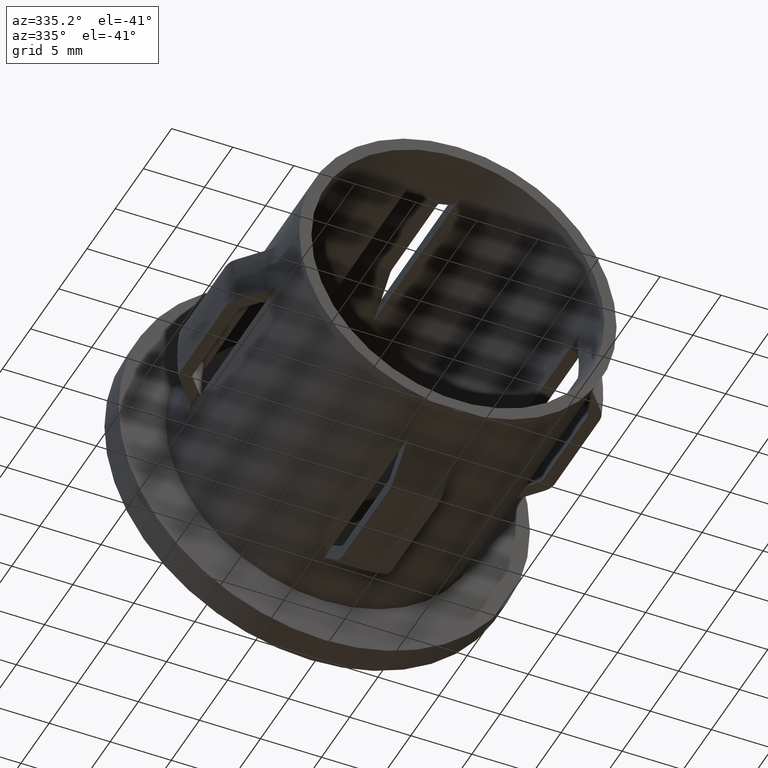
[diagram: clean part render]
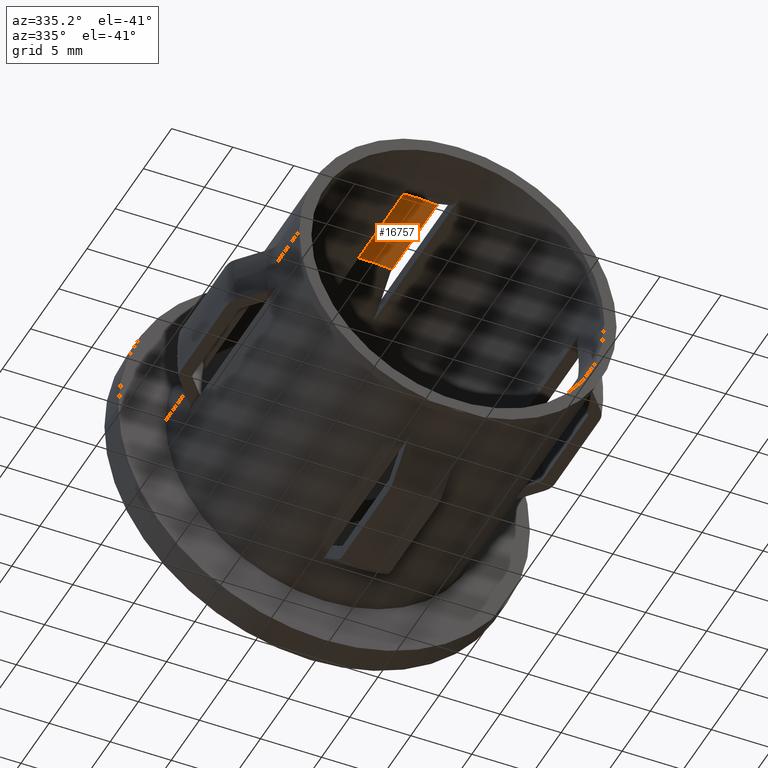
[diagram: same view with one face highlighted and labeled with its STEP entity id]
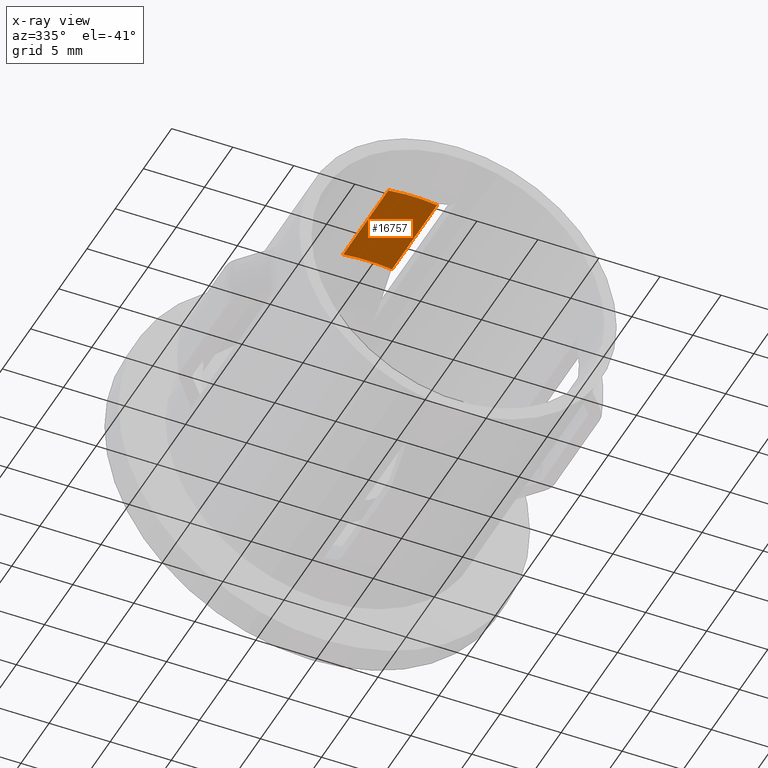
[diagram: x-ray of the same camera — body ghosted, the highlighted face saturated]
A machine part, auxiliary view. The second image highlights one B-rep face of the part: STEP entity #16757.
The next image is the same camera in x-ray: the body ghosted, the highlighted face saturated — about 0% of this face is hidden behind the body in this view.
In plain terms, the highlighted cylindrical surface (partial cylindrical patch) has radius 14.45 mm, axis along (0, 1, -0).
Its self-contained STEP definition (entity closure, byte-faithful):
#534 = CARTESIAN_POINT ( 'NONE',  ( 2.000000000000004900, 26.19999999999999900, 14.31092240213746800 ) ) ;
#744 = ORIENTED_EDGE ( 'NONE', *, *, #10645, .T. ) ;
#803 = CIRCLE ( 'NONE', #11280, 14.44999999999999800 ) ;
#1091 = VECTOR ( 'NONE', #13148, 1000.000000000000000 ) ;
#1108 = DIRECTION ( 'NONE',  ( -1.000000000000000000, 0.0000000000000000000, 0.0000000000000000000 ) ) ;
#2536 = VERTEX_POINT ( 'NONE', #14616 ) ;
#3036 = ORIENTED_EDGE ( 'NONE', *, *, #12866, .F. ) ;
#3044 = CARTESIAN_POINT ( 'NONE',  ( -1.999999999999995800, 16.00000000000000000, 14.31092240213746300 ) ) ;
#3489 = VERTEX_POINT ( 'NONE', #10727 ) ;
#3727 = CARTESIAN_POINT ( 'NONE',  ( 2.000000000000003600, 8.000000000000003600, 14.31092240213746800 ) ) ;
#3769 = CARTESIAN_POINT ( 'NONE',  ( 3.673940397442062800E-016, 26.19999999999999900, 0.0000000000000000000 ) ) ;
#4160 = EDGE_CURVE ( 'NONE', #11248, #3489, #803, .T. ) ;
#4924 = AXIS2_PLACEMENT_3D ( 'NONE', #3769, #9211, #5440 ) ;
#5440 = DIRECTION ( 'NONE',  ( -1.000000000000000000, 0.0000000000000000000, 0.0000000000000000000 ) ) ;
#5462 = CIRCLE ( 'NONE', #5555, 14.45000000000000300 ) ;
#5555 = AXIS2_PLACEMENT_3D ( 'NONE', #11577, #16805, #14074 ) ;
#6310 = CARTESIAN_POINT ( 'NONE',  ( -1.999999999999995800, 26.19999999999999900, 14.31092240213746800 ) ) ;
#6330 = EDGE_CURVE ( 'NONE', #2536, #16096, #5462, .T. ) ;
#7880 = CARTESIAN_POINT ( 'NONE',  ( -3.820898013339736000E-016, 16.00000000000000000, 0.0000000000000000000 ) ) ;
#9133 = DIRECTION ( 'NONE',  ( -7.347880794884120200E-017, -1.000000000000000000, 0.0000000000000000000 ) ) ;
#9211 = DIRECTION ( 'NONE',  ( 7.347880794884120200E-017, 1.000000000000000000, -0.0000000000000000000 ) ) ;
#10645 = EDGE_CURVE ( 'NONE', #3489, #16096, #15631, .T. ) ;
#10727 = CARTESIAN_POINT ( 'NONE',  ( 2.000000000000004900, 16.00000000000000000, 14.31092240213746300 ) ) ;
#10995 = EDGE_LOOP ( 'NONE', ( #3036, #14915, #744, #14278 ) ) ;
#11248 = VERTEX_POINT ( 'NONE', #3044 ) ;
#11280 = AXIS2_PLACEMENT_3D ( 'NONE', #7880, #16008, #1108 ) ;
#11372 = FACE_OUTER_BOUND ( 'NONE', #10995, .T. ) ;
#11577 = CARTESIAN_POINT ( 'NONE',  ( -9.699202649247035600E-016, 7.999999999999996400, 0.0000000000000000000 ) ) ;
#11850 = VECTOR ( 'NONE', #9133, 1000.000000000000000 ) ;
#12866 = EDGE_CURVE ( 'NONE', #11248, #2536, #15599, .T. ) ;
#13148 = DIRECTION ( 'NONE',  ( -7.347880794884120200E-017, -1.000000000000000000, 0.0000000000000000000 ) ) ;
#14074 = DIRECTION ( 'NONE',  ( -1.000000000000000000, 1.200500675416475300E-016, 0.0000000000000000000 ) ) ;
#14136 = CYLINDRICAL_SURFACE ( 'NONE', #4924, 14.45000000000000100 ) ;
#14278 = ORIENTED_EDGE ( 'NONE', *, *, #6330, .F. ) ;
#14616 = CARTESIAN_POINT ( 'NONE',  ( -1.999999999999997100, 8.000000000000003600, 14.31092240213746800 ) ) ;
#14915 = ORIENTED_EDGE ( 'NONE', *, *, #4160, .T. ) ;
#15599 = LINE ( 'NONE', #6310, #1091 ) ;
#15631 = LINE ( 'NONE', #534, #11850 ) ;
#16008 = DIRECTION ( 'NONE',  ( 7.347880794884120200E-017, 1.000000000000000000, -0.0000000000000000000 ) ) ;
#16096 = VERTEX_POINT ( 'NONE', #3727 ) ;
#16757 = ADVANCED_FACE ( 'NONE', ( #11372 ), #14136, .F. ) ;
#16805 = DIRECTION ( 'NONE',  ( 7.347880794884120200E-017, 1.000000000000000000, -0.0000000000000000000 ) ) ;